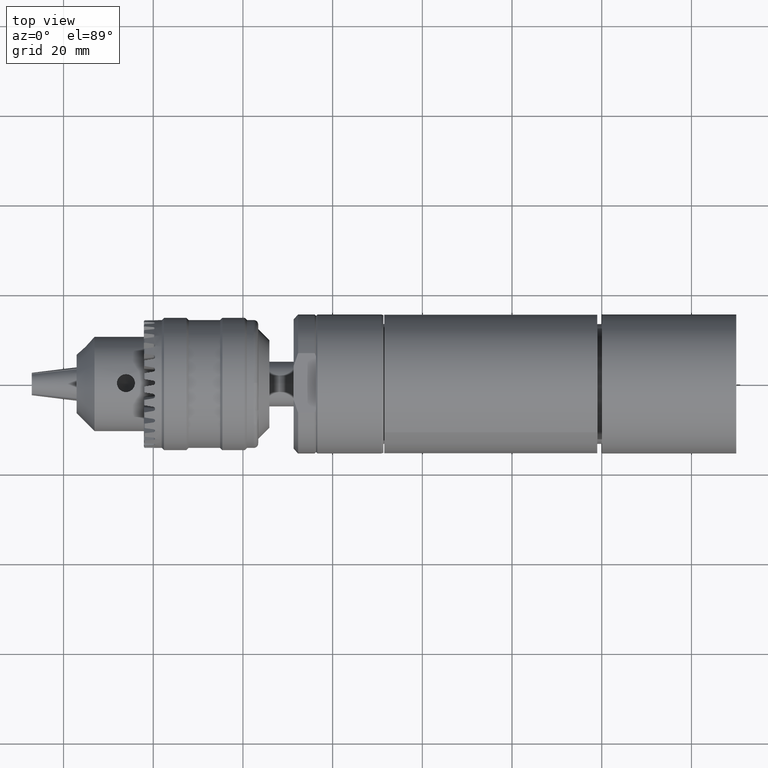
[diagram: clean part render]
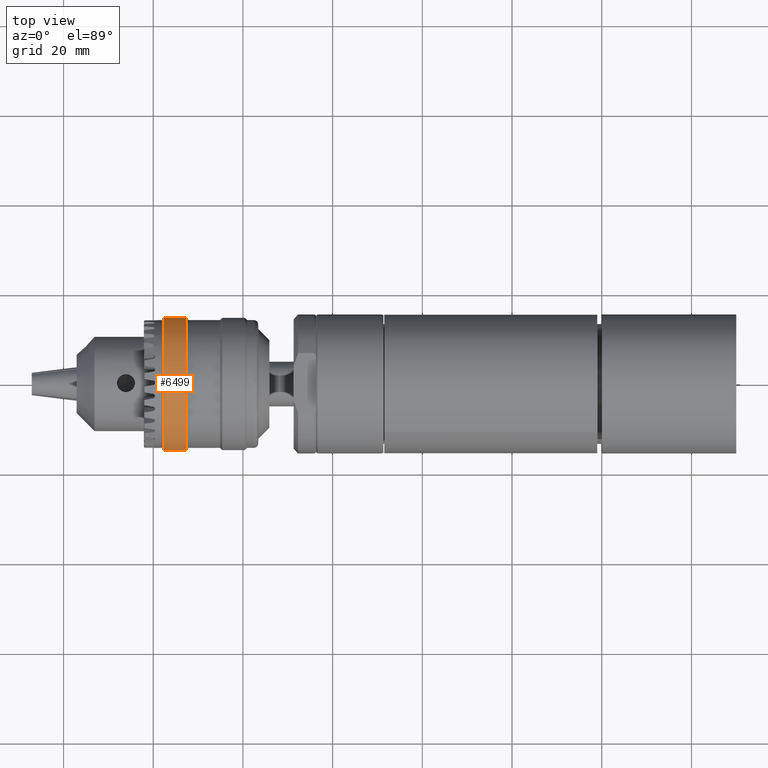
[diagram: same view with one face highlighted and labeled with its STEP entity id]
A machine part, top view. The second image highlights one B-rep face of the part: STEP entity #6499.
In plain terms, the highlighted cylindrical surface (bore or boss wall) has radius 14.75 mm, axis along (1, 0, -0).
Its self-contained STEP definition (entity closure, byte-faithful):
#495=LINE('',#10234,#990);
#990=VECTOR('',#8084,14.75);
#1281=CYLINDRICAL_SURFACE('',#6971,14.75);
#1815=FACE_OUTER_BOUND('',#2182,.T.);
#2182=EDGE_LOOP('',(#4939,#4940,#4941,#4942,#4943,#4944));
#2516=CIRCLE('',#6967,14.75);
#2517=CIRCLE('',#6968,14.75);
#2520=CIRCLE('',#6972,14.75);
#2521=CIRCLE('',#6973,14.75);
#2930=VERTEX_POINT('',#10220);
#2931=VERTEX_POINT('',#10221);
#2934=VERTEX_POINT('',#10230);
#2935=VERTEX_POINT('',#10231);
#3667=EDGE_CURVE('',#2930,#2931,#2516,.T.);
#3668=EDGE_CURVE('',#2931,#2930,#2517,.T.);
#3672=EDGE_CURVE('',#2934,#2935,#2520,.T.);
#3673=EDGE_CURVE('',#2935,#2934,#2521,.T.);
#3674=EDGE_CURVE('',#2935,#2931,#495,.T.);
#4939=ORIENTED_EDGE('',*,*,#3672,.F.);
#4940=ORIENTED_EDGE('',*,*,#3673,.F.);
#4941=ORIENTED_EDGE('',*,*,#3674,.T.);
#4942=ORIENTED_EDGE('',*,*,#3668,.T.);
#4943=ORIENTED_EDGE('',*,*,#3667,.T.);
#4944=ORIENTED_EDGE('',*,*,#3674,.F.);
#6499=ADVANCED_FACE('',(#1815),#1281,.T.);
#6967=AXIS2_PLACEMENT_3D('',#10222,#8069,#8070);
#6968=AXIS2_PLACEMENT_3D('',#10223,#8071,#8072);
#6971=AXIS2_PLACEMENT_3D('',#10229,#8078,#8079);
#6972=AXIS2_PLACEMENT_3D('',#10232,#8080,#8081);
#6973=AXIS2_PLACEMENT_3D('',#10233,#8082,#8083);
#8069=DIRECTION('center_axis',(1.,2.45022473231302E-16,-9.49410759657492E-16));
#8070=DIRECTION('ref_axis',(-6.12323399573692E-17,1.,-8.38142190496947E-16));
#8071=DIRECTION('center_axis',(1.,2.45022473231302E-16,-9.49410759657492E-16));
#8072=DIRECTION('ref_axis',(-6.12323399573692E-17,1.,-8.38142190496947E-16));
#8078=DIRECTION('center_axis',(1.,2.45022473231302E-16,-9.49410759657492E-16));
#8079=DIRECTION('ref_axis',(-6.12323399573692E-17,1.,-8.38142190496947E-16));
#8080=DIRECTION('center_axis',(1.,2.45022473231302E-16,-9.49410759657492E-16));
#8081=DIRECTION('ref_axis',(-6.12323399573692E-17,1.,-8.38142190496947E-16));
#8082=DIRECTION('center_axis',(1.,2.45022473231302E-16,-9.49410759657492E-16));
#8083=DIRECTION('ref_axis',(-6.12323399573692E-17,1.,-8.38142190496947E-16));
#8084=DIRECTION('',(-1.,-2.45022473231302E-16,9.49410759657492E-16));
#10220=CARTESIAN_POINT('',(-97.5956264204289,14.75,-4.0370214719726E-14));
#10221=CARTESIAN_POINT('',(-97.5956264204289,-14.75,-1.74513741288084E-14));
#10222=CARTESIAN_POINT('Origin',(-97.5956264204289,7.22816296032342E-15,
-2.8007617409896E-14));
#10223=CARTESIAN_POINT('Origin',(-97.5956264204289,7.22816296032342E-15,
-2.8007617409896E-14));
#10229=CARTESIAN_POINT('Origin',(-95.0956264204289,7.84071914340168E-15,
-3.03811443090398E-14));
#10230=CARTESIAN_POINT('',(-92.5956264204289,14.75,-4.51172685180135E-14));
#10231=CARTESIAN_POINT('',(-92.5956264204289,-14.75,-2.21984279270959E-14));
#10232=CARTESIAN_POINT('Origin',(-92.5956264204289,8.45327532647993E-15,
-3.27546712081835E-14));
#10233=CARTESIAN_POINT('Origin',(-92.5956264204289,8.45327532647993E-15,
-3.27546712081835E-14));
#10234=CARTESIAN_POINT('',(-95.0956264204289,-14.75,-1.98249010279521E-14));